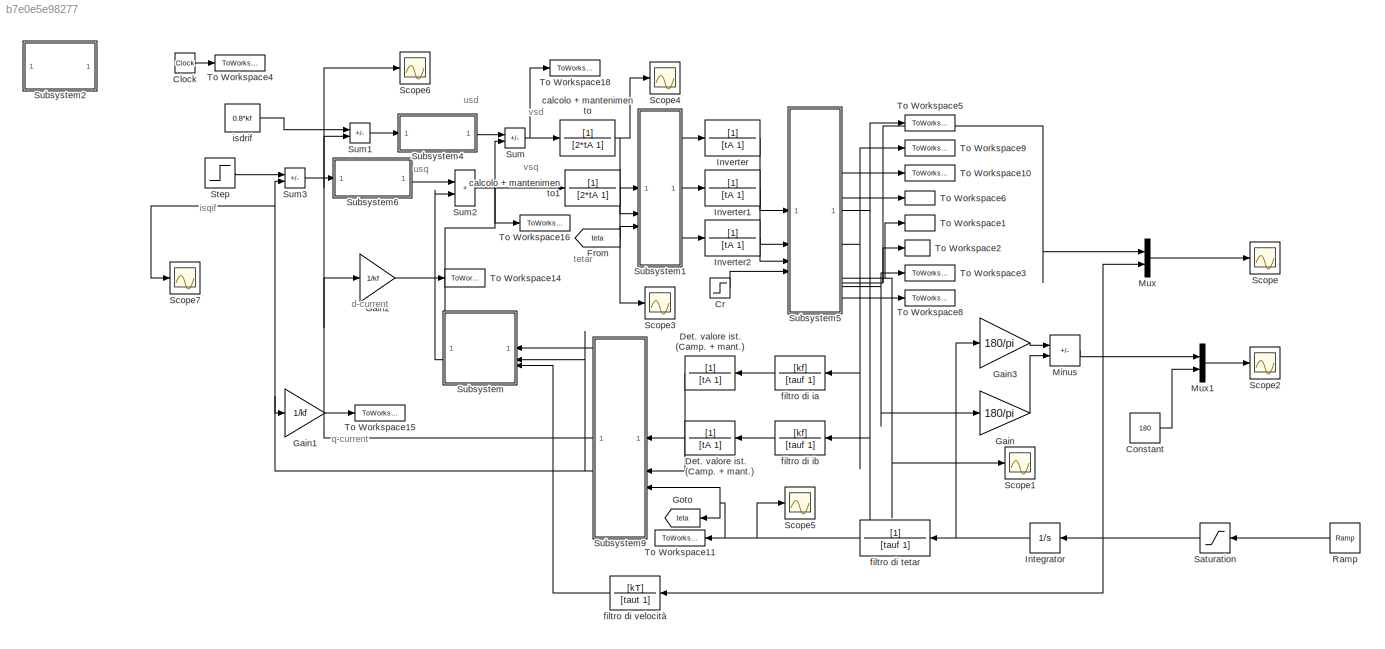
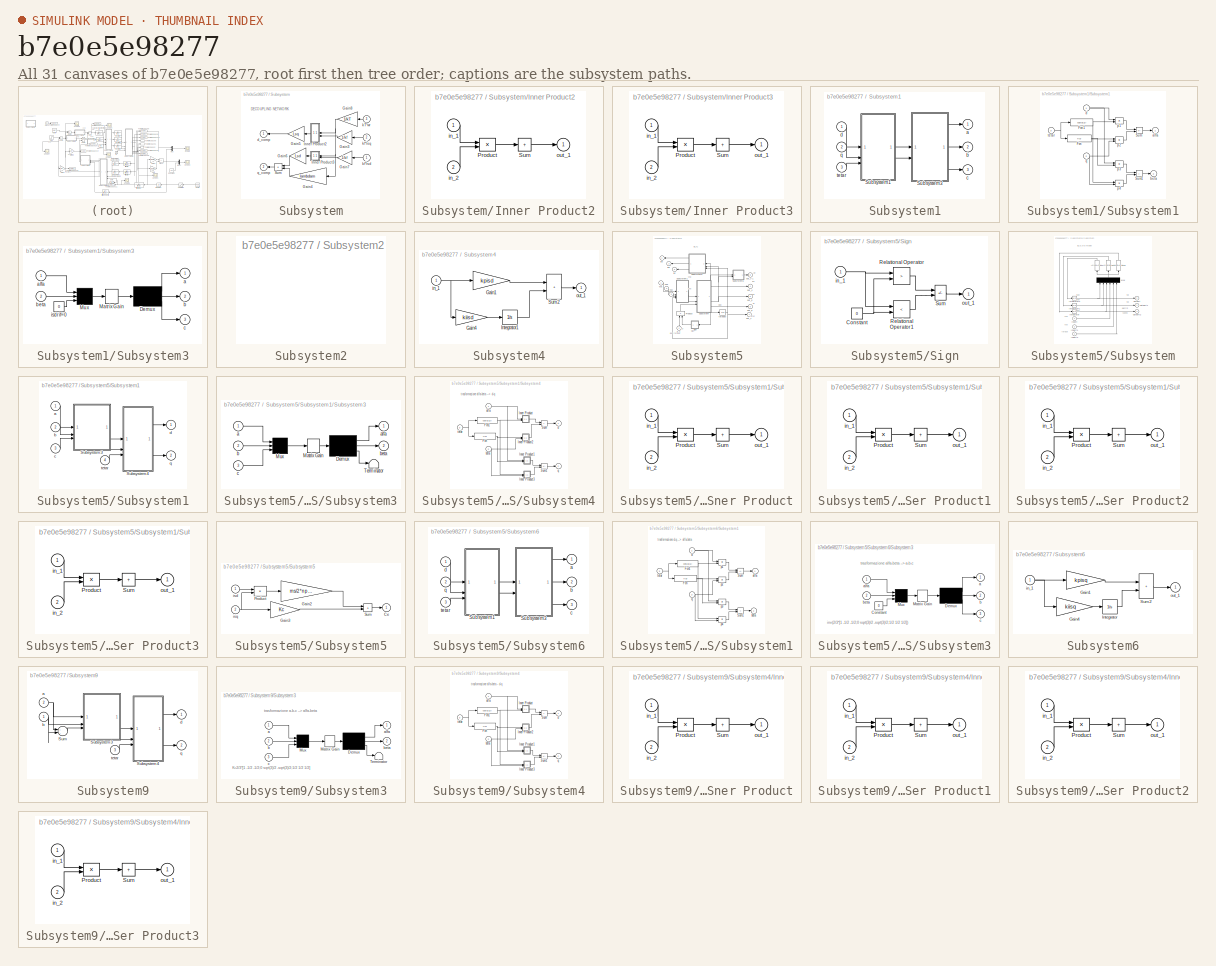
[diagram: thumbnail index - all 31 canvases of the model, root first then tree order]
MODEL slx_b7e0e5e98277
KIND model
CONFIG AbsTol = 1e-4
CONFIG EnableMultiTasking = off
CONFIG FixedStep = fixed_step_size
CONFIG MaxStep = .1*Tc
CONFIG MinStep = auto
CONFIG RelTol = 1e-4
CONFIG SampleTimeConstraint = Unconstrained
CONFIG SolverName = VariableStepAuto
CONFIG StartTime = 0.0
CONFIG StopTime = 1.5
BLOCK [Clock] Clock
  Decimation = 1
BLOCK [Constant] Constant
  Value = 180
BLOCK [Step] Cr
  After = 0
  SampleTime = 0
  Time = 0
BLOCK [TransferFcn] Det. valore ist. (Camp. + mant.)
  Denominator = [tA 1]
BLOCK [TransferFcn] Det. valore ist. (Camp. + mant.) 
  Denominator = [tA 1]
BLOCK [From] From
  CloseFcn = tagdialog Close
  GotoTag = teta
  IconDisplay = Signal name
  TagVisibility = global
BLOCK [Gain] Gain
  Gain = 180/pi
BLOCK [Gain] Gain1
  Gain = 1/kf
  OutDataTypeStr = Inherit: Same as input
  ParamDataTypeStr = Inherit: Same as input
  SaturateOnIntegerOverflow = on
BLOCK [Gain] Gain2
  Gain = 1/kf
  OutDataTypeStr = Inherit: Same as input
  ParamDataTypeStr = Inherit: Same as input
  SaturateOnIntegerOverflow = on
BLOCK [Gain] Gain3
  Gain = 180/pi
BLOCK [Goto] Goto
  GotoTag = teta
  NameLocation = top
  TagVisibility = global
BLOCK [Integrator] Integrator
  NameLocation = top
BLOCK [TransferFcn] Inverter
  Denominator = [tA 1]
  NameLocation = top
BLOCK [TransferFcn] Inverter1
  Denominator = [tA 1]
  NameLocation = top
BLOCK [TransferFcn] Inverter2
  Denominator = [tA 1]
  NameLocation = top
BLOCK [Sum] Minus
  IconShape = rectangular
  Inputs = +-
BLOCK [Mux] Mux
  DisplayOption = bar
  Inputs = 2
BLOCK [Mux] Mux1
  DisplayOption = bar
  Inputs = 2
BLOCK [Reference] Ramp  REF=simulink/Sources/Ramp
  NameLocation = top
  SourceBlock = simulink/Sources/Ramp
  SourceType = Ramp
BLOCK [Saturate] Saturation
  LowerLimit = -50
  NameLocation = top
  UpperLimit = 124
BLOCK [Scope] Scope
  ActiveDisplayYMaximum = 171.98547846661523
  ActiveDisplayYMinimum = -19.109497607401689
  Floating = off
  GraphicalSettings = {"Style":{"BackgroundColor":[0.12549019607843137,0.12549019607843137,0.12549019607843137],"AxesColor":[0.06666666666666667,0.06666666666666667,0.06666666666666667],"LabelsColor":[0.8509803921568627,0.8509803921568627,0.8509803921568627],"PreserveColors":false,"Visible":[true,true],"LineStyle":["-","-"],"LineWidth":[1.5,1.5],"BarWidth":[0.9,0.9],"LineColor":[[1,0.9098039215686274,0.3921568627450980...<+2219ch>
  LayoutDimensionsString = [1 1]
  MultipleDisplayCache = [{"MaxYLimMag":171.98547846661523,"MaxYLimReal":171.98547846661523,"MinYLimMag":0,"MinYLimReal":-19.109497607401689,"PlotAsMagnitudePhase":false,"ShowGrid":true,"ShowLegend":false,"Title":"%<SignalLabel>","YLabel":""}]
  NumInputPorts = 1
  ScopeFrameLocation = window
  WasSavedAsWebScope = on
  WindowPosition = [39.000000,85.000000,928.000000,683.000000,]
BLOCK [Scope] Scope1
  ActiveDisplayYMaximum = 0.92726
  ActiveDisplayYMinimum = -0.99294
  DataLoggingVariableName = ScopeData1
  Floating = off
  GraphicalSettings = {"GraphicalSettings":{"LegacySettings":true,"Style":{"AxesScalingProperties":{"AlignXAxis":"Center","AlignYAxis":"Center","AutoScaleXAxisLimits":false,"AxesScaling":"Manual","AxesScalingNumUpdates":10,"ScaleAxesLimitsAtStop":true,"XAxisDataRange":100,"YAxisDataRange":80},"Style":{"AxesColor":"[0.0705882352941176 0.0705882352941176 0.0705882352941176]","BackgroundColor":"[0.129411764705882 0.129411...<+842ch>
  LayoutDimensionsString = [1 1]
  MultipleDisplayCache = [{"MaxYLimMag":0.99294,"MaxYLimReal":0.92726,"MinYLimMag":0,"MinYLimReal":-0.99294,"PlotAsMagnitudePhase":false,"ShowGrid":true,"ShowLegend":false,"Title":"%<SignalLabel>","YLabel":""}]
  NumInputPorts = 1
  WasSavedAsWebScope = on
  WindowPosition = [350 176 560 420]
BLOCK [Scope] Scope2
  ActiveDisplayYMaximum = 207.45180695810168
  ActiveDisplayYMinimum = -67.066262622915161
  DataLoggingVariableName = ScopeData1
  Floating = off
  GraphicalSettings = {"Style":{"BackgroundColor":[0.12549019607843137,0.12549019607843137,0.12549019607843137],"AxesColor":[0.06666666666666667,0.06666666666666667,0.06666666666666667],"LabelsColor":[0.8509803921568627,0.8509803921568627,0.8509803921568627],"PreserveColors":false,"Visible":[true,true],"LineStyle":["-","-"],"LineWidth":[1.5,1.5],"BarWidth":[0.9,0.9],"LineColor":[[1,0.9098039215686274,0.3921568627450980...<+2141ch>
  LayoutDimensionsString = [1 1]
  MultipleDisplayCache = [{"MaxYLimMag":207.45180695810168,"MaxYLimReal":207.45180695810168,"MinYLimMag":0,"MinYLimReal":-67.066262622915161,"PlotAsMagnitudePhase":false,"ShowGrid":true,"ShowLegend":false,"Title":"%<SignalLabel>","YLabel":""}]
  NumInputPorts = 1
  ScopeFrameLocation = window
  WasSavedAsWebScope = on
  WindowPosition = [34.000000,37.000000,867.000000,547.000000,]
BLOCK [Scope] Scope3
  ActiveDisplayYMaximum = 40.5628
  ActiveDisplayYMinimum = -15.5866
  DataLoggingVariableName = ScopeData2
  Floating = off
  GraphicalSettings = {"GraphicalSettings":{"LegacySettings":true,"Style":{"AxesScalingProperties":{"AlignXAxis":"Center","AlignYAxis":"Center","AutoScaleXAxisLimits":true,"AxesScaling":"Manual","AxesScalingNumUpdates":10,"ScaleAxesLimitsAtStop":true,"XAxisDataRange":100,"YAxisDataRange":80},"Style":{"AxesColor":"[0 0 0]","ChannelNames":[""],"ColorOrder":"[1 0.909803921568627 0.392156862745098;0.149019607843137 0.54901...<+675ch>
  LayoutDimensionsString = [1 1]
  MultipleDisplayCache = [{"MaxYLimMag":40.5628,"MaxYLimReal":40.5628,"MinYLimMag":0,"MinYLimReal":-15.5866,"PlotAsMagnitudePhase":false,"ShowGrid":true,"ShowLegend":false,"Title":"%<SignalLabel>","YLabel":""}]
  NumInputPorts = 1
  WasSavedAsWebScope = on
BLOCK [Scope] Scope4
  ActiveDisplayYMaximum = 18.342605286410514
  ActiveDisplayYMinimum = -14.673438725516837
  DataLoggingVariableName = ScopeData3
  Floating = off
  GraphicalSettings = {"AxesScalingProperties":{"AlignXAxis":"Center","AlignYAxis":"Center","AutoScaleXAxisLimits":true,"AxesScaling":"Manual","AxesScalingNumUpdates":10,"ExpandOnly":true,"ScaleAxesLimitsAtStop":false,"XAxisDataRange":100,"YAxisDataRange":80},"DisplayProperties":{"ColorOrder":["auto","auto","auto","auto","auto","auto","auto","auto","auto","auto","auto","auto","auto","auto","auto","auto","auto","auto","...<+1969ch>
  LayoutDimensionsString = [1 1]
  MultipleDisplayCache = [{"MaxYLimMag":12.349474753433869,"MaxYLimReal":18.342605286410514,"MinYLimMag":0,"MinYLimReal":-14.673438725516837,"PlotAsMagnitudePhase":false,"ShowGrid":true,"ShowLegend":false,"Title":"%<SignalLabel>","YLabel":""}]
  NumInputPorts = 1
  ScopeFrameLocation = window
  WasSavedAsWebScope = on
  WindowPosition = [369.000000,207.000000,560.000000,420.000000,]
BLOCK [Scope] Scope5
  ActiveDisplayYMaximum = 324.403
  ActiveDisplayYMinimum = -36.0448
  DataLoggingVariableName = ScopeData4
  Floating = off
  GraphicalSettings = {"GraphicalSettings":{"LegacySettings":true,"Style":{"AxesScalingProperties":{"AlignXAxis":"Center","AlignYAxis":"Center","AutoScaleXAxisLimits":true,"AxesScaling":"Manual","AxesScalingNumUpdates":10,"ScaleAxesLimitsAtStop":true,"XAxisDataRange":100,"YAxisDataRange":80},"Style":{"AxesColor":"[0 0 0]","ChannelNames":[""],"ColorOrder":"[1 0.909803921568627 0.392156862745098;0.149019607843137 0.54901...<+675ch>
  LayoutDimensionsString = [1 1]
  MultipleDisplayCache = [{"MaxYLimMag":324.403,"MaxYLimReal":324.403,"MinYLimMag":0,"MinYLimReal":-36.0448,"PlotAsMagnitudePhase":false,"ShowGrid":true,"ShowLegend":false,"Title":"%<SignalLabel>","YLabel":""}]
  NumInputPorts = 1
  WasSavedAsWebScope = on
BLOCK [Scope] Scope6
  ActiveDisplayYMaximum = 0.14494
  ActiveDisplayYMinimum = -0.016104
  DataLoggingVariableName = ScopeData5
  Floating = off
  GraphicalSettings = {"GraphicalSettings":{"LegacySettings":true,"Style":{"AxesScalingProperties":{"AlignXAxis":"Center","AlignYAxis":"Center","AutoScaleXAxisLimits":false,"AxesScaling":"Manual","AxesScalingNumUpdates":10,"ScaleAxesLimitsAtStop":true,"XAxisDataRange":100,"YAxisDataRange":80},"Style":{"AxesColor":"[0.0705882352941176 0.0705882352941176 0.0705882352941176]","BackgroundColor":"[0.129411764705882 0.129411...<+822ch>
  LayoutDimensionsString = [1 1]
  MultipleDisplayCache = [{"MaxYLimMag":0.14494,"MaxYLimReal":0.14494,"MinYLimMag":0,"MinYLimReal":-0.016104,"PlotAsMagnitudePhase":false,"ShowGrid":true,"ShowLegend":false,"Title":"%<SignalLabel>","YLabel":""}]
  NumInputPorts = 1
  WasSavedAsWebScope = on
  WindowPosition = [403 174 560 420]
BLOCK [Scope] Scope7
  ActiveDisplayYMaximum = 1
  ActiveDisplayYMinimum = -1
  DataLoggingVariableName = ScopeData6
  Floating = off
  GraphicalSettings = {"Style":{"BackgroundColor":[0.12549019607843137,0.12549019607843137,0.12549019607843137],"AxesColor":[0.06666666666666667,0.06666666666666667,0.06666666666666667],"LabelsColor":[0.8509803921568627,0.8509803921568627,0.8509803921568627],"PreserveColors":false,"Visible":[true],"LineStyle":["-"],"LineWidth":[1.5],"BarWidth":[0.9],"LineColor":[[1,0.9098039215686274,0.39215686274509803]],"LineFaceAlph...<+1942ch>
  LayoutDimensionsString = [1 1]
  MultipleDisplayCache = [{"MaxYLimMag":1,"MaxYLimReal":1,"MinYLimMag":0,"MinYLimReal":-1,"PlotAsMagnitudePhase":false,"ShowGrid":true,"ShowLegend":false,"Title":"%<SignalLabel>","YLabel":""}]
  NumInputPorts = 1
  ScopeFrameLocation = window
  WasSavedAsWebScope = on
  WindowPosition = [403.000000,174.000000,560.000000,420.000000,]
BLOCK [Step] Step
  After = 0
  SampleTime = 0
  Time = 0
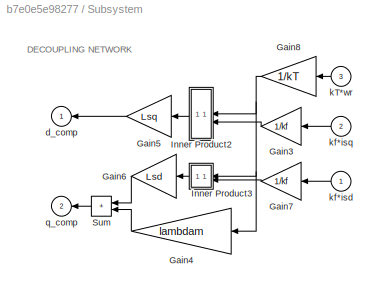
BLOCK [SubSystem] Subsystem
  ShowPortLabels = none
BLOCK [Gain] Subsystem/Gain3
  Gain = 1/kf
  OutDataTypeStr = Inherit: Same as input
  ParamDataTypeStr = Inherit: Same as input
  SaturateOnIntegerOverflow = on
BLOCK [Gain] Subsystem/Gain4
  Gain = lambdam
  OutDataTypeStr = Inherit: Same as input
  ParamDataTypeStr = Inherit: Same as input
  SaturateOnIntegerOverflow = on
BLOCK [Gain] Subsystem/Gain5
  Gain = Lsq
  OutDataTypeStr = Inherit: Same as input
  ParamDataTypeStr = Inherit: Same as input
  SaturateOnIntegerOverflow = on
BLOCK [Gain] Subsystem/Gain6
  Gain = Lsd
  OutDataTypeStr = Inherit: Same as input
  ParamDataTypeStr = Inherit: Same as input
  SaturateOnIntegerOverflow = on
BLOCK [Gain] Subsystem/Gain7
  Gain = 1/kf
  OutDataTypeStr = Inherit: Same as input
  ParamDataTypeStr = Inherit: Same as input
  SaturateOnIntegerOverflow = on
BLOCK [Gain] Subsystem/Gain8
  Gain = 1/kT
  OutDataTypeStr = Inherit: Same as input
  ParamDataTypeStr = Inherit: Same as input
  SaturateOnIntegerOverflow = on
BLOCK [SubSystem] Subsystem/Inner Product2
  ShowPortLabels = none
BLOCK [Product] Subsystem/Inner Product2/Product
  InputSameDT = on
  OutDataTypeStr = Inherit: Same as first input
  SaturateOnIntegerOverflow = on
BLOCK [Sum] Subsystem/Inner Product2/Sum
  IconShape = rectangular
  InputSameDT = on
  Inputs = +
  OutDataTypeStr = Inherit: Same as first input
  SaturateOnIntegerOverflow = on
BLOCK [Inport] Subsystem/Inner Product2/in_1
BLOCK [Inport] Subsystem/Inner Product2/in_2
  Port = 2
BLOCK [Outport] Subsystem/Inner Product2/out_1
BLOCK [SubSystem] Subsystem/Inner Product3
  ShowPortLabels = none
BLOCK [Product] Subsystem/Inner Product3/Product
  InputSameDT = on
  OutDataTypeStr = Inherit: Same as first input
  SaturateOnIntegerOverflow = on
BLOCK [Sum] Subsystem/Inner Product3/Sum
  IconShape = rectangular
  InputSameDT = on
  Inputs = +
  OutDataTypeStr = Inherit: Same as first input
  SaturateOnIntegerOverflow = on
BLOCK [Inport] Subsystem/Inner Product3/in_1
BLOCK [Inport] Subsystem/Inner Product3/in_2
  Port = 2
BLOCK [Outport] Subsystem/Inner Product3/out_1
BLOCK [Sum] Subsystem/Sum
  IconShape = rectangular
  InputSameDT = on
  OutDataTypeStr = Inherit: Same as first input
  SaturateOnIntegerOverflow = on
BLOCK [Outport] Subsystem/d_comp
BLOCK [Inport] Subsystem/kT*wr
  Port = 3
BLOCK [Inport] Subsystem/kf*isd
BLOCK [Inport] Subsystem/kf*isq
  Port = 2
BLOCK [Outport] Subsystem/q_comp
  Port = 2
BLOCK [SubSystem] Subsystem1
  ShowPortLabels = none
BLOCK [SubSystem] Subsystem1/Subsystem1
  ShowPortLabels = none
BLOCK [Fcn] Subsystem1/Subsystem1/Fcn
BLOCK [Fcn] Subsystem1/Subsystem1/Fcn1
  Expr = cos(u[1])
BLOCK [Sum] Subsystem1/Subsystem1/Sum
  IconShape = rectangular
  InputSameDT = on
  Inputs = +-
  OutDataTypeStr = Inherit: Same as first input
  SaturateOnIntegerOverflow = on
BLOCK [Sum] Subsystem1/Subsystem1/Sum1
  IconShape = rectangular
  InputSameDT = on
  OutDataTypeStr = Inherit: Same as first input
  SaturateOnIntegerOverflow = on
BLOCK [Outport] Subsystem1/Subsystem1/alfa
BLOCK [Outport] Subsystem1/Subsystem1/beta
  Port = 2
BLOCK [Inport] Subsystem1/Subsystem1/d
BLOCK [Product] Subsystem1/Subsystem1/p1
  InputSameDT = on
  OutDataTypeStr = Inherit: Same as first input
  SaturateOnIntegerOverflow = on
BLOCK [Product] Subsystem1/Subsystem1/p2
  InputSameDT = on
  OutDataTypeStr = Inherit: Same as first input
  SaturateOnIntegerOverflow = on
BLOCK [Product] Subsystem1/Subsystem1/p3
  InputSameDT = on
  OutDataTypeStr = Inherit: Same as first input
  SaturateOnIntegerOverflow = on
BLOCK [Product] Subsystem1/Subsystem1/p4
  InputSameDT = on
  OutDataTypeStr = Inherit: Same as first input
  SaturateOnIntegerOverflow = on
BLOCK [Inport] Subsystem1/Subsystem1/q
  Port = 2
BLOCK [Inport] Subsystem1/Subsystem1/tetar 
  Port = 3
BLOCK [SubSystem] Subsystem1/Subsystem3
  ShowPortLabels = none
BLOCK [Demux] Subsystem1/Subsystem3/Demux
  DisplayOption = none
  Outputs = 3
BLOCK [StateSpace] Subsystem1/Subsystem3/Matrix Gain
  A = []
  B = []
  C = []
  D = K
  InitialCondition = 0
BLOCK [Mux] Subsystem1/Subsystem3/Mux
  Inputs = 3
BLOCK [Outport] Subsystem1/Subsystem3/a
BLOCK [Inport] Subsystem1/Subsystem3/alfa
BLOCK [Outport] Subsystem1/Subsystem3/b
  Port = 2
BLOCK [Inport] Subsystem1/Subsystem3/beta
  Port = 2
BLOCK [Outport] Subsystem1/Subsystem3/c 
  Port = 3
BLOCK [Constant] Subsystem1/Subsystem3/isdrif=0
  Value = 0
BLOCK [Outport] Subsystem1/a
BLOCK [Outport] Subsystem1/b
  Port = 2
BLOCK [Outport] Subsystem1/c
  Port = 3
BLOCK [Inport] Subsystem1/d
BLOCK [Inport] Subsystem1/q
  Port = 2
BLOCK [Inport] Subsystem1/tetar
  Port = 3
BLOCK [SubSystem] Subsystem2
  OpenFcn = BLAC_1d
  ShowPortLabels = none
BLOCK [SubSystem] Subsystem4
  ShowPortLabels = none
BLOCK [Gain] Subsystem4/Gain1
  Gain = kpisd
  OutDataTypeStr = Inherit: Same as input
  ParamDataTypeStr = Inherit: Same as input
  SaturateOnIntegerOverflow = on
BLOCK [Gain] Subsystem4/Gain4
  Gain = kiisd
  OutDataTypeStr = Inherit: Same as input
  ParamDataTypeStr = Inherit: Same as input
  SaturateOnIntegerOverflow = on
BLOCK [Integrator] Subsystem4/Integrator1
BLOCK [Sum] Subsystem4/Sum2
  IconShape = rectangular
  InputSameDT = on
  OutDataTypeStr = Inherit: Same as first input
  SaturateOnIntegerOverflow = on
BLOCK [Inport] Subsystem4/in_1
BLOCK [Outport] Subsystem4/out_1
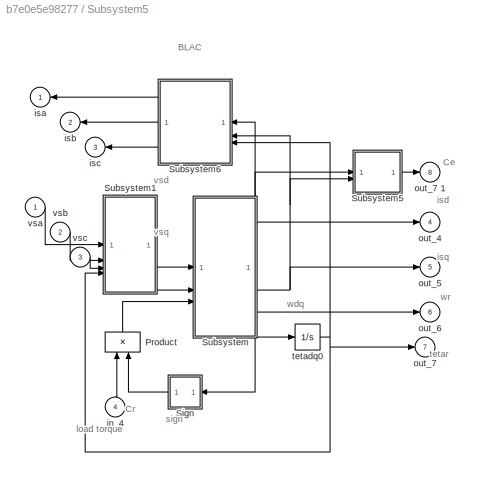
BLOCK [SubSystem] Subsystem5
  ShowPortLabels = none
BLOCK [Product] Subsystem5/Product
  InputSameDT = on
  NameLocation = right
  OutDataTypeStr = Inherit: Same as first input
  SaturateOnIntegerOverflow = on
BLOCK [SubSystem] Subsystem5/Sign
  ShowPortLabels = none
BLOCK [Constant] Subsystem5/Sign/Constant
  Value = 0
BLOCK [RelationalOperator] Subsystem5/Sign/Relational Operator
  Operator = >
BLOCK [RelationalOperator] Subsystem5/Sign/Relational Operator1
  Operator = <
BLOCK [Sum] Subsystem5/Sign/Sum
  IconShape = rectangular
  InputSameDT = on
  Inputs = +-
  OutDataTypeStr = Inherit: Same as first input
  SaturateOnIntegerOverflow = on
BLOCK [Inport] Subsystem5/Sign/in_1
BLOCK [Outport] Subsystem5/Sign/out_1
BLOCK [SubSystem] Subsystem5/Subsystem
  ShowPortLabels = none
BLOCK [Fcn] Subsystem5/Subsystem/Fcn
  Expr = A1*u[1]+A2*u[2]*u[3]+A3*u[4]
  NameLocation = right
BLOCK [Fcn] Subsystem5/Subsystem/Fcn1
  Expr = A4*u[1]*u[3]+A5*u[2]+A6*u[3]+A7*u[5]
  NameLocation = right
BLOCK [Fcn] Subsystem5/Subsystem/Fcn2
  Expr = A8*u[2]+A9*u[1]*u[2]+A10*u[3]+A11*u[6]
  NameLocation = right
BLOCK [Inport] Subsystem5/Subsystem/Inport
BLOCK [Inport] Subsystem5/Subsystem/Inport1
  Port = 2
BLOCK [Inport] Subsystem5/Subsystem/Inport2
  Port = 3
BLOCK [Integrator] Subsystem5/Subsystem/Integrator
  InitialCondition = wdq0
BLOCK [Integrator] Subsystem5/Subsystem/Integrator1
  InitialCondition = isq0
BLOCK [Integrator] Subsystem5/Subsystem/Integrator2
  InitialCondition = isd0
BLOCK [Mux] Subsystem5/Subsystem/Mux
  Inputs = 6
  NameLocation = right
BLOCK [Outport] Subsystem5/Subsystem/Outport
BLOCK [Outport] Subsystem5/Subsystem/Outport1
  Port = 2
BLOCK [Outport] Subsystem5/Subsystem/Outport2
  Port = 3
BLOCK [SubSystem] Subsystem5/Subsystem1
  ShowPortLabels = none
BLOCK [SubSystem] Subsystem5/Subsystem1/Subsystem3
  ShowPortLabels = none
BLOCK [Demux] Subsystem5/Subsystem1/Subsystem3/Demux
  DisplayOption = none
  Outputs = 3
BLOCK [StateSpace] Subsystem5/Subsystem1/Subsystem3/Matrix Gain
  A = []
  B = []
  C = []
  D = K
  InitialCondition = 0
BLOCK [Mux] Subsystem5/Subsystem1/Subsystem3/Mux
  Inputs = 3
BLOCK [Terminator] Subsystem5/Subsystem1/Subsystem3/Terminator
BLOCK [Inport] Subsystem5/Subsystem1/Subsystem3/a
BLOCK [Outport] Subsystem5/Subsystem1/Subsystem3/alfa
BLOCK [Inport] Subsystem5/Subsystem1/Subsystem3/b
  Port = 2
BLOCK [Outport] Subsystem5/Subsystem1/Subsystem3/beta
  Port = 2
BLOCK [Inport] Subsystem5/Subsystem1/Subsystem3/c
  Port = 3
BLOCK [SubSystem] Subsystem5/Subsystem1/Subsystem4
  ShowPortLabels = none
BLOCK [Fcn] Subsystem5/Subsystem1/Subsystem4/Fcn
BLOCK [Fcn] Subsystem5/Subsystem1/Subsystem4/Fcn1
  Expr = cos(u[1])
BLOCK [SubSystem] Subsystem5/Subsystem1/Subsystem4/Inner Product
  ShowPortLabels = none
BLOCK [Product] Subsystem5/Subsystem1/Subsystem4/Inner Product/Product
  InputSameDT = on
  OutDataTypeStr = Inherit: Same as first input
  SaturateOnIntegerOverflow = on
BLOCK [Sum] Subsystem5/Subsystem1/Subsystem4/Inner Product/Sum
  IconShape = rectangular
  InputSameDT = on
  Inputs = +
  OutDataTypeStr = Inherit: Same as first input
  SaturateOnIntegerOverflow = on
BLOCK [Inport] Subsystem5/Subsystem1/Subsystem4/Inner Product/in_1
BLOCK [Inport] Subsystem5/Subsystem1/Subsystem4/Inner Product/in_2
  Port = 2
BLOCK [Outport] Subsystem5/Subsystem1/Subsystem4/Inner Product/out_1
BLOCK [SubSystem] Subsystem5/Subsystem1/Subsystem4/Inner Product1
  ShowPortLabels = none
BLOCK [Product] Subsystem5/Subsystem1/Subsystem4/Inner Product1/Product
  InputSameDT = on
  OutDataTypeStr = Inherit: Same as first input
  SaturateOnIntegerOverflow = on
BLOCK [Sum] Subsystem5/Subsystem1/Subsystem4/Inner Product1/Sum
  IconShape = rectangular
  InputSameDT = on
  Inputs = +
  OutDataTypeStr = Inherit: Same as first input
  SaturateOnIntegerOverflow = on
BLOCK [Inport] Subsystem5/Subsystem1/Subsystem4/Inner Product1/in_1
BLOCK [Inport] Subsystem5/Subsystem1/Subsystem4/Inner Product1/in_2
  Port = 2
BLOCK [Outport] Subsystem5/Subsystem1/Subsystem4/Inner Product1/out_1
BLOCK [SubSystem] Subsystem5/Subsystem1/Subsystem4/Inner Product2
  ShowPortLabels = none
BLOCK [Product] Subsystem5/Subsystem1/Subsystem4/Inner Product2/Product
  InputSameDT = on
  OutDataTypeStr = Inherit: Same as first input
  SaturateOnIntegerOverflow = on
BLOCK [Sum] Subsystem5/Subsystem1/Subsystem4/Inner Product2/Sum
  IconShape = rectangular
  InputSameDT = on
  Inputs = +
  OutDataTypeStr = Inherit: Same as first input
  SaturateOnIntegerOverflow = on
BLOCK [Inport] Subsystem5/Subsystem1/Subsystem4/Inner Product2/in_1
BLOCK [Inport] Subsystem5/Subsystem1/Subsystem4/Inner Product2/in_2
  Port = 2
BLOCK [Outport] Subsystem5/Subsystem1/Subsystem4/Inner Product2/out_1
BLOCK [SubSystem] Subsystem5/Subsystem1/Subsystem4/Inner Product3
  ShowPortLabels = none
BLOCK [Product] Subsystem5/Subsystem1/Subsystem4/Inner Product3/Product
  InputSameDT = on
  OutDataTypeStr = Inherit: Same as first input
  SaturateOnIntegerOverflow = on
BLOCK [Sum] Subsystem5/Subsystem1/Subsystem4/Inner Product3/Sum
  IconShape = rectangular
  InputSameDT = on
  Inputs = +
  OutDataTypeStr = Inherit: Same as first input
  SaturateOnIntegerOverflow = on
BLOCK [Inport] Subsystem5/Subsystem1/Subsystem4/Inner Product3/in_1
BLOCK [Inport] Subsystem5/Subsystem1/Subsystem4/Inner Product3/in_2
  Port = 2
BLOCK [Outport] Subsystem5/Subsystem1/Subsystem4/Inner Product3/out_1
BLOCK [Sum] Subsystem5/Subsystem1/Subsystem4/Sum
  IconShape = rectangular
  InputSameDT = on
  OutDataTypeStr = Inherit: Same as first input
  SaturateOnIntegerOverflow = on
BLOCK [Sum] Subsystem5/Subsystem1/Subsystem4/Sum1
  IconShape = rectangular
  InputSameDT = on
  Inputs = -+
  OutDataTypeStr = Inherit: Same as first input
  SaturateOnIntegerOverflow = on
BLOCK [Inport] Subsystem5/Subsystem1/Subsystem4/alfa
BLOCK [Inport] Subsystem5/Subsystem1/Subsystem4/beta
  Port = 2
BLOCK [Outport] Subsystem5/Subsystem1/Subsystem4/d
BLOCK [Outport] Subsystem5/Subsystem1/Subsystem4/q
  Port = 2
BLOCK [Inport] Subsystem5/Subsystem1/Subsystem4/tetar 
  Port = 3
BLOCK [Inport] Subsystem5/Subsystem1/a
BLOCK [Inport] Subsystem5/Subsystem1/b
  Port = 2
BLOCK [Inport] Subsystem5/Subsystem1/c
  Port = 3
BLOCK [Outport] Subsystem5/Subsystem1/d
BLOCK [Outport] Subsystem5/Subsystem1/q
  Port = 2
BLOCK [Inport] Subsystem5/Subsystem1/tetar
  Port = 4
BLOCK [SubSystem] Subsystem5/Subsystem5
  ShowPortLabels = none
BLOCK [Outport] Subsystem5/Subsystem5/Ce
BLOCK [Gain] Subsystem5/Subsystem5/Gain2
  Gain = ms/2*np*(Lsd-Lsq)
  OutDataTypeStr = Inherit: Same as input
  ParamDataTypeStr = Inherit: Same as input
  SaturateOnIntegerOverflow = on
BLOCK [Gain] Subsystem5/Subsystem5/Gain3
  Gain = Kc
  OutDataTypeStr = Inherit: Same as input
  ParamDataTypeStr = Inherit: Same as input
  SaturateOnIntegerOverflow = on
BLOCK [Product] Subsystem5/Subsystem5/Product
  InputSameDT = on
  OutDataTypeStr = Inherit: Same as first input
  SaturateOnIntegerOverflow = on
BLOCK [Sum] Subsystem5/Subsystem5/Sum
  IconShape = rectangular
  InputSameDT = on
  OutDataTypeStr = Inherit: Same as first input
  SaturateOnIntegerOverflow = on
BLOCK [Inport] Subsystem5/Subsystem5/isd
BLOCK [Inport] Subsystem5/Subsystem5/isq
  Port = 2
BLOCK [SubSystem] Subsystem5/Subsystem6
  ShowPortLabels = none
BLOCK [SubSystem] Subsystem5/Subsystem6/Subsystem1
  ShowPortLabels = none
BLOCK [Fcn] Subsystem5/Subsystem6/Subsystem1/Fcn
BLOCK [Fcn] Subsystem5/Subsystem6/Subsystem1/Fcn1
  Expr = cos(u[1])
BLOCK [Sum] Subsystem5/Subsystem6/Subsystem1/Sum
  IconShape = rectangular
  InputSameDT = on
  Inputs = +-
  OutDataTypeStr = Inherit: Same as first input
  SaturateOnIntegerOverflow = on
BLOCK [Sum] Subsystem5/Subsystem6/Subsystem1/Sum1
  IconShape = rectangular
  InputSameDT = on
  OutDataTypeStr = Inherit: Same as first input
  SaturateOnIntegerOverflow = on
BLOCK [Outport] Subsystem5/Subsystem6/Subsystem1/alfa
BLOCK [Outport] Subsystem5/Subsystem6/Subsystem1/beta
  Port = 2
BLOCK [Inport] Subsystem5/Subsystem6/Subsystem1/d
BLOCK [Product] Subsystem5/Subsystem6/Subsystem1/p1
  InputSameDT = on
  OutDataTypeStr = Inherit: Same as first input
  SaturateOnIntegerOverflow = on
BLOCK [Product] Subsystem5/Subsystem6/Subsystem1/p2
  InputSameDT = on
  OutDataTypeStr = Inherit: Same as first input
  SaturateOnIntegerOverflow = on
BLOCK [Product] Subsystem5/Subsystem6/Subsystem1/p3
  InputSameDT = on
  OutDataTypeStr = Inherit: Same as first input
  SaturateOnIntegerOverflow = on
BLOCK [Product] Subsystem5/Subsystem6/Subsystem1/p4
  InputSameDT = on
  OutDataTypeStr = Inherit: Same as first input
  SaturateOnIntegerOverflow = on
BLOCK [Inport] Subsystem5/Subsystem6/Subsystem1/q
  Port = 2
BLOCK [Inport] Subsystem5/Subsystem6/Subsystem1/tetar 
  Port = 3
BLOCK [SubSystem] Subsystem5/Subsystem6/Subsystem3
  ShowPortLabels = none
BLOCK [Constant] Subsystem5/Subsystem6/Subsystem3/Constant
  Value = 0
BLOCK [Demux] Subsystem5/Subsystem6/Subsystem3/Demux
  DisplayOption = none
  Outputs = 3
BLOCK [StateSpace] Subsystem5/Subsystem6/Subsystem3/Matrix Gain
  A = []
  B = []
  C = []
  D = K
  InitialCondition = 0
BLOCK [Mux] Subsystem5/Subsystem6/Subsystem3/Mux
  Inputs = 3
BLOCK [Outport] Subsystem5/Subsystem6/Subsystem3/a
BLOCK [Inport] Subsystem5/Subsystem6/Subsystem3/alfa
BLOCK [Outport] Subsystem5/Subsystem6/Subsystem3/b
  Port = 2
BLOCK [Inport] Subsystem5/Subsystem6/Subsystem3/beta
  Port = 2
BLOCK [Outport] Subsystem5/Subsystem6/Subsystem3/c 
  Port = 3
BLOCK [Outport] Subsystem5/Subsystem6/a
BLOCK [Outport] Subsystem5/Subsystem6/b
  Port = 2
BLOCK [Outport] Subsystem5/Subsystem6/c
  Port = 3
BLOCK [Inport] Subsystem5/Subsystem6/d
BLOCK [Inport] Subsystem5/Subsystem6/q
  Port = 2
BLOCK [Inport] Subsystem5/Subsystem6/tetar
  Port = 3
BLOCK [Inport] Subsystem5/in_4
  NameLocation = right
  Port = 4
BLOCK [Outport] Subsystem5/isa
BLOCK [Outport] Subsystem5/isb
  Port = 2
BLOCK [Outport] Subsystem5/isc
  Port = 3
BLOCK [Outport] Subsystem5/out_4
  Port = 4
BLOCK [Outport] Subsystem5/out_5
  Port = 5
BLOCK [Outport] Subsystem5/out_6
  Port = 6
BLOCK [Outport] Subsystem5/out_7 
  Port = 7
BLOCK [Outport] Subsystem5/out_7 1
  Port = 8
BLOCK [Integrator] Subsystem5/tetadq0
  InitialCondition = tetadq0
BLOCK [Inport] Subsystem5/vsa
BLOCK [Inport] Subsystem5/vsb
  Port = 2
BLOCK [Inport] Subsystem5/vsc
  Port = 3
BLOCK [SubSystem] Subsystem6
  ShowPortLabels = none
BLOCK [Gain] Subsystem6/Gain1
  Gain = kpisq
  OutDataTypeStr = Inherit: Same as input
  ParamDataTypeStr = Inherit: Same as input
  SaturateOnIntegerOverflow = on
BLOCK [Gain] Subsystem6/Gain4
  Gain = kiisq
  OutDataTypeStr = Inherit: Same as input
  ParamDataTypeStr = Inherit: Same as input
  SaturateOnIntegerOverflow = on
BLOCK [Integrator] Subsystem6/Integrator
BLOCK [Sum] Subsystem6/Sum2
  IconShape = rectangular
  InputSameDT = on
  OutDataTypeStr = Inherit: Same as first input
  SaturateOnIntegerOverflow = on
BLOCK [Inport] Subsystem6/in_1
BLOCK [Outport] Subsystem6/out_1
BLOCK [SubSystem] Subsystem9
  ShowPortLabels = none
BLOCK [SubSystem] Subsystem9/Subsystem3
  ShowPortLabels = none
BLOCK [Demux] Subsystem9/Subsystem3/Demux
  DisplayOption = none
  Outputs = 3
BLOCK [StateSpace] Subsystem9/Subsystem3/Matrix Gain
  A = []
  B = []
  C = []
  D = K
  InitialCondition = 0
BLOCK [Mux] Subsystem9/Subsystem3/Mux
  Inputs = 3
BLOCK [Terminator] Subsystem9/Subsystem3/Terminator
BLOCK [Inport] Subsystem9/Subsystem3/a
BLOCK [Outport] Subsystem9/Subsystem3/alfa
BLOCK [Inport] Subsystem9/Subsystem3/b
  Port = 2
BLOCK [Outport] Subsystem9/Subsystem3/beta
  Port = 2
BLOCK [Inport] Subsystem9/Subsystem3/c
  Port = 3
BLOCK [SubSystem] Subsystem9/Subsystem4
  ShowPortLabels = none
BLOCK [Fcn] Subsystem9/Subsystem4/Fcn
BLOCK [Fcn] Subsystem9/Subsystem4/Fcn1
  Expr = cos(u[1])
BLOCK [SubSystem] Subsystem9/Subsystem4/Inner Product
  ShowPortLabels = none
BLOCK [Product] Subsystem9/Subsystem4/Inner Product/Product
  InputSameDT = on
  OutDataTypeStr = Inherit: Same as first input
  SaturateOnIntegerOverflow = on
BLOCK [Sum] Subsystem9/Subsystem4/Inner Product/Sum
  IconShape = rectangular
  InputSameDT = on
  Inputs = +
  OutDataTypeStr = Inherit: Same as first input
  SaturateOnIntegerOverflow = on
BLOCK [Inport] Subsystem9/Subsystem4/Inner Product/in_1
BLOCK [Inport] Subsystem9/Subsystem4/Inner Product/in_2
  Port = 2
BLOCK [Outport] Subsystem9/Subsystem4/Inner Product/out_1
BLOCK [SubSystem] Subsystem9/Subsystem4/Inner Product1
  ShowPortLabels = none
BLOCK [Product] Subsystem9/Subsystem4/Inner Product1/Product
  InputSameDT = on
  OutDataTypeStr = Inherit: Same as first input
  SaturateOnIntegerOverflow = on
BLOCK [Sum] Subsystem9/Subsystem4/Inner Product1/Sum
  IconShape = rectangular
  InputSameDT = on
  Inputs = +
  OutDataTypeStr = Inherit: Same as first input
  SaturateOnIntegerOverflow = on
BLOCK [Inport] Subsystem9/Subsystem4/Inner Product1/in_1
BLOCK [Inport] Subsystem9/Subsystem4/Inner Product1/in_2
  Port = 2
BLOCK [Outport] Subsystem9/Subsystem4/Inner Product1/out_1
BLOCK [SubSystem] Subsystem9/Subsystem4/Inner Product2
  ShowPortLabels = none
BLOCK [Product] Subsystem9/Subsystem4/Inner Product2/Product
  InputSameDT = on
  OutDataTypeStr = Inherit: Same as first input
  SaturateOnIntegerOverflow = on
BLOCK [Sum] Subsystem9/Subsystem4/Inner Product2/Sum
  IconShape = rectangular
  InputSameDT = on
  Inputs = +
  OutDataTypeStr = Inherit: Same as first input
  SaturateOnIntegerOverflow = on
BLOCK [Inport] Subsystem9/Subsystem4/Inner Product2/in_1
BLOCK [Inport] Subsystem9/Subsystem4/Inner Product2/in_2
  Port = 2
BLOCK [Outport] Subsystem9/Subsystem4/Inner Product2/out_1
BLOCK [SubSystem] Subsystem9/Subsystem4/Inner Product3
  ShowPortLabels = none
BLOCK [Product] Subsystem9/Subsystem4/Inner Product3/Product
  InputSameDT = on
  OutDataTypeStr = Inherit: Same as first input
  SaturateOnIntegerOverflow = on
BLOCK [Sum] Subsystem9/Subsystem4/Inner Product3/Sum
  IconShape = rectangular
  InputSameDT = on
  Inputs = +
  OutDataTypeStr = Inherit: Same as first input
  SaturateOnIntegerOverflow = on
BLOCK [Inport] Subsystem9/Subsystem4/Inner Product3/in_1
BLOCK [Inport] Subsystem9/Subsystem4/Inner Product3/in_2
  Port = 2
BLOCK [Outport] Subsystem9/Subsystem4/Inner Product3/out_1
BLOCK [Sum] Subsystem9/Subsystem4/Sum
  IconShape = rectangular
  InputSameDT = on
  OutDataTypeStr = Inherit: Same as first input
  SaturateOnIntegerOverflow = on
BLOCK [Sum] Subsystem9/Subsystem4/Sum1
  IconShape = rectangular
  InputSameDT = on
  Inputs = -+
  OutDataTypeStr = Inherit: Same as first input
  SaturateOnIntegerOverflow = on
BLOCK [Inport] Subsystem9/Subsystem4/alfa
BLOCK [Inport] Subsystem9/Subsystem4/beta
  Port = 2
BLOCK [Outport] Subsystem9/Subsystem4/d
BLOCK [Outport] Subsystem9/Subsystem4/q
  Port = 2
BLOCK [Inport] Subsystem9/Subsystem4/tetar 
  Port = 3
BLOCK [Sum] Subsystem9/Sum
  InputSameDT = on
  Inputs = --
  OutDataTypeStr = Inherit: Same as first input
  SaturateOnIntegerOverflow = on
BLOCK [Inport] Subsystem9/a
  Port = 2
BLOCK [Inport] Subsystem9/b
BLOCK [Outport] Subsystem9/d
BLOCK [Outport] Subsystem9/q
  Port = 2
BLOCK [Inport] Subsystem9/tetar
  Port = 3
BLOCK [Sum] Sum
  IconShape = rectangular
  InputSameDT = on
  Inputs = +-
  OutDataTypeStr = Inherit: Same as first input
  SaturateOnIntegerOverflow = on
BLOCK [Sum] Sum1
  IconShape = rectangular
  InputSameDT = on
  Inputs = +-
  OutDataTypeStr = Inherit: Same as first input
  SaturateOnIntegerOverflow = on
BLOCK [Sum] Sum2
  IconShape = rectangular
  InputSameDT = on
  OutDataTypeStr = Inherit: Same as first input
  SaturateOnIntegerOverflow = on
BLOCK [Sum] Sum3
  IconShape = rectangular
  InputSameDT = on
  Inputs = +-
  OutDataTypeStr = Inherit: Same as first input
  SaturateOnIntegerOverflow = on
BLOCK [ToWorkspace] To Workspace1
  MaxDataPoints = 1e6
  OpenFcn = figure(5);                                     \nplot(ts,isq,'k',ts,isqr,'--k','linewidth',2);  \nxlabel('time [s]');                            \nylabel('isq [A]');title('BLAC motor q-current')
  VariableName = isq
BLOCK [ToWorkspace] To Workspace10
  MaxDataPoints = 1e6
  OpenFcn = figure(4);plot(ts,isc);xlabel('time [s]');ylabel('isc [A]');title('BLAC motor phase current')
  VariableName = isc
BLOCK [ToWorkspace] To Workspace11
  MaxDataPoints = inf
  NameLocation = top
  VariableName = tetam
BLOCK [ToWorkspace] To Workspace14
  MaxDataPoints = inf
  VariableName = isdm
BLOCK [ToWorkspace] To Workspace15
  MaxDataPoints = inf
  VariableName = isqm
BLOCK [ToWorkspace] To Workspace16
  MaxDataPoints = inf
  VariableName = vsq
BLOCK [ToWorkspace] To Workspace18
  MaxDataPoints = inf
  VariableName = vsd
BLOCK [ToWorkspace] To Workspace2
  MaxDataPoints = 1e6
  OpenFcn = figure(1);                                  \nplot(ts,wref,'--k',ts,wr,'k','linewidth',2);\nxlabel('time [s]');                         \nylabel('speed [rad/s]');                    \ntitle('BLAC motor speed response')
  VariableName = wr
BLOCK [ToWorkspace] To Workspace3
  MaxDataPoints = inf
  VariableName = tetar
BLOCK [ToWorkspace] To Workspace4
  MaxDataPoints = inf
  VariableName = ts
BLOCK [ToWorkspace] To Workspace5
  MaxDataPoints = 1e6
  OpenFcn = figure(2);plot(ts,isa);xlabel('time [s]');ylabel('isa [A]');title('BLAC motor phase current')
  VariableName = isa
BLOCK [ToWorkspace] To Workspace6
  MaxDataPoints = 1e6
  OpenFcn = figure(5);plot(ts,isd,'linewidth',2);xlabel('time [s]');ylabel('isd [A]');title('BLAC motor d-current')\naxis([0 0.5 -5 20])
  VariableName = isd
BLOCK [ToWorkspace] To Workspace8
  MaxDataPoints = 1e6
  OpenFcn = figure(7);plot(ts,torque,'k','linewidth',2);\nxlabel('time [s]');                         \nylabel('Electromagnetic torque [Nm]');      \ntitle('BLAC motor electromagnetic torque')
  VariableName = torque
BLOCK [ToWorkspace] To Workspace9
  MaxDataPoints = 1e6
  OpenFcn = figure(3);plot(ts,isb);xlabel('time [s]');ylabel('isb [A]');title('BLAC motor phase current')
  VariableName = isb
BLOCK [TransferFcn] calcolo + mantenimento
  Denominator = [2*tA 1]
  NameLocation = top
BLOCK [TransferFcn] calcolo + mantenimento1
  Denominator = [2*tA 1]
  NameLocation = top
BLOCK [TransferFcn] filtro di ia
  Denominator = [tauf 1]
  Numerator = [kf]
BLOCK [TransferFcn] filtro di ib
  Denominator = [tauf 1]
  Numerator = [kf]
BLOCK [TransferFcn] filtro di tetar
  Denominator = [tauf 1]
BLOCK [TransferFcn] filtro di velocità
  Denominator = [taut 1]
  Numerator = [kT]
BLOCK [Constant] isdrif
  Value = 0.8*kf
ANNOTATION (root): d-current
ANNOTATION (root): isqif
ANNOTATION (root): q-current
ANNOTATION (root): tetar
ANNOTATION (root): usd
ANNOTATION (root): usq
ANNOTATION (root): vsd
ANNOTATION (root): vsq
ANNOTATION Subsystem: DECOUPLING NETWORK
ANNOTATION Subsystem5: BLAC
ANNOTATION Subsystem5: Ce
ANNOTATION Subsystem5: Cr
ANNOTATION Subsystem5: isd
ANNOTATION Subsystem5: isq
ANNOTATION Subsystem5: load torque
ANNOTATION Subsystem5: sign
ANNOTATION Subsystem5: tetar
ANNOTATION Subsystem5: vsd
ANNOTATION Subsystem5: vsq
ANNOTATION Subsystem5: wdq
ANNOTATION Subsystem5: wr
ANNOTATION Subsystem5/Subsystem: BLAC d-q model
ANNOTATION Subsystem5/Subsystem: electric speed
ANNOTATION Subsystem5/Subsystem: isd
ANNOTATION Subsystem5/Subsystem: isd0
ANNOTATION Subsystem5/Subsystem: isq
ANNOTATION Subsystem5/Subsystem: isq0
ANNOTATION Subsystem5/Subsystem: torque
ANNOTATION Subsystem5/Subsystem: vsd
ANNOTATION Subsystem5/Subsystem: vsq
ANNOTATION Subsystem5/Subsystem: wdq0
ANNOTATION Subsystem5/Subsystem1/Subsystem4: trasformazione alfa-beta --> d-q
ANNOTATION Subsystem5/Subsystem6/Subsystem1: trasformazione d-q --> alfa-beta
ANNOTATION Subsystem5/Subsystem6/Subsystem3: inv(2/3*[1 -1/2 -1/2;0 sqrt(3)/2 -sqrt(3)/2;1/2 1/2 1/2])
ANNOTATION Subsystem5/Subsystem6/Subsystem3: trasformazione alfa-beta --> a-b-c
ANNOTATION Subsystem9/Subsystem3: K=2/3*[1 -1/2 -1/2;0 sqrt(3)/2 -sqrt(3)/2;1/2 1/2 1/2]
ANNOTATION Subsystem9/Subsystem3: trasformazione a-b-c --> alfa-beta
ANNOTATION Subsystem9/Subsystem4: trasformazione alfa-beta - d-q
LINE Clock:1 -> To Workspace4:1
LINE Constant:1 -> Mux1:2
LINE Cr:1 -> Subsystem5:4
LINE Det. valore ist. (Camp. + mant.) :1 -> Subsystem9:1
LINE Det. valore ist. (Camp. + mant.):1 -> Subsystem9:2
LINE From:1 -> Subsystem1:3
LINE Gain1:1 -> To Workspace15:1
LINE Gain2:1 -> To Workspace14:1
LINE Gain3:1 -> Minus:1
LINE Gain:1 -> Minus:2
NET Integrator:1 -> Gain3:1, filtro di tetar:1
LINE Inverter1:1 -> Subsystem5:2
LINE Inverter2:1 -> Subsystem5:3
LINE Inverter:1 -> Subsystem5:1
LINE Minus:1 -> Mux1:1
LINE Mux1:1 -> Scope2:1
LINE Mux:1 -> Scope:1
LINE Ramp:1 -> Saturation:1
NET Saturation:1 -> Integrator:1, Mux:2, filtro di velocità:1
LINE Step:1 -> Sum3:1
LINE Subsystem/Gain3:1 -> Subsystem/Inner Product2:2
LINE Subsystem/Gain4:1 -> Subsystem/Sum:2
LINE Subsystem/Gain5:1 -> Subsystem/d_comp:1
LINE Subsystem/Gain6:1 -> Subsystem/Sum:1
LINE Subsystem/Gain7:1 -> Subsystem/Inner Product3:2
NET Subsystem/Gain8:1 -> Subsystem/Gain4:1, Subsystem/Inner Product2:1, Subsystem/Inner Product3:1
LINE Subsystem/Inner Product2/Product:1 -> Subsystem/Inner Product2/Sum:1
LINE Subsystem/Inner Product2/Sum:1 -> Subsystem/Inner Product2/out_1:1
LINE Subsystem/Inner Product2/in_1:1 -> Subsystem/Inner Product2/Product:1
LINE Subsystem/Inner Product2/in_2:1 -> Subsystem/Inner Product2/Product:2
LINE Subsystem/Inner Product2:1 -> Subsystem/Gain5:1
LINE Subsystem/Inner Product3/Product:1 -> Subsystem/Inner Product3/Sum:1
LINE Subsystem/Inner Product3/Sum:1 -> Subsystem/Inner Product3/out_1:1
LINE Subsystem/Inner Product3/in_1:1 -> Subsystem/Inner Product3/Product:1
LINE Subsystem/Inner Product3/in_2:1 -> Subsystem/Inner Product3/Product:2
LINE Subsystem/Inner Product3:1 -> Subsystem/Gain6:1
LINE Subsystem/Sum:1 -> Subsystem/q_comp:1
LINE Subsystem/kT*wr:1 -> Subsystem/Gain8:1
LINE Subsystem/kf*isd:1 -> Subsystem/Gain7:1
LINE Subsystem/kf*isq:1 -> Subsystem/Gain3:1
NET Subsystem1/Subsystem1/Fcn1:1 -> Subsystem1/Subsystem1/p1:2, Subsystem1/Subsystem1/p4:1
NET Subsystem1/Subsystem1/Fcn:1 -> Subsystem1/Subsystem1/p2:1, Subsystem1/Subsystem1/p3:2
LINE Subsystem1/Subsystem1/Sum1:1 -> Subsystem1/Subsystem1/beta:1
LINE Subsystem1/Subsystem1/Sum:1 -> Subsystem1/Subsystem1/alfa:1
NET Subsystem1/Subsystem1/d:1 -> Subsystem1/Subsystem1/p1:1, Subsystem1/Subsystem1/p3:1
LINE Subsystem1/Subsystem1/p1:1 -> Subsystem1/Subsystem1/Sum:1
LINE Subsystem1/Subsystem1/p2:1 -> Subsystem1/Subsystem1/Sum:2
LINE Subsystem1/Subsystem1/p3:1 -> Subsystem1/Subsystem1/Sum1:1
LINE Subsystem1/Subsystem1/p4:1 -> Subsystem1/Subsystem1/Sum1:2
NET Subsystem1/Subsystem1/q:1 -> Subsystem1/Subsystem1/p2:2, Subsystem1/Subsystem1/p4:2
NET Subsystem1/Subsystem1/tetar :1 -> Subsystem1/Subsystem1/Fcn1:1, Subsystem1/Subsystem1/Fcn:1
LINE Subsystem1/Subsystem1:1 -> Subsystem1/Subsystem3:1
LINE Subsystem1/Subsystem1:2 -> Subsystem1/Subsystem3:2
LINE Subsystem1/Subsystem3/Demux:1 -> Subsystem1/Subsystem3/a:1
LINE Subsystem1/Subsystem3/Demux:2 -> Subsystem1/Subsystem3/b:1
LINE Subsystem1/Subsystem3/Demux:3 -> Subsystem1/Subsystem3/c :1
LINE Subsystem1/Subsystem3/Matrix Gain:1 -> Subsystem1/Subsystem3/Demux:1
LINE Subsystem1/Subsystem3/Mux:1 -> Subsystem1/Subsystem3/Matrix Gain:1
LINE Subsystem1/Subsystem3/alfa:1 -> Subsystem1/Subsystem3/Mux:1
LINE Subsystem1/Subsystem3/beta:1 -> Subsystem1/Subsystem3/Mux:2
LINE Subsystem1/Subsystem3/isdrif=0:1 -> Subsystem1/Subsystem3/Mux:3
LINE Subsystem1/Subsystem3:1 -> Subsystem1/a:1
LINE Subsystem1/Subsystem3:2 -> Subsystem1/b:1
LINE Subsystem1/Subsystem3:3 -> Subsystem1/c:1
LINE Subsystem1/d:1 -> Subsystem1/Subsystem1:1
LINE Subsystem1/q:1 -> Subsystem1/Subsystem1:2
LINE Subsystem1/tetar:1 -> Subsystem1/Subsystem1:3
LINE Subsystem1:1 -> Inverter:1
LINE Subsystem1:2 -> Inverter1:1
LINE Subsystem1:3 -> Inverter2:1
LINE Subsystem4/Gain1:1 -> Subsystem4/Sum2:1
LINE Subsystem4/Gain4:1 -> Subsystem4/Integrator1:1
LINE Subsystem4/Integrator1:1 -> Subsystem4/Sum2:2
LINE Subsystem4/Sum2:1 -> Subsystem4/out_1:1
NET Subsystem4/in_1:1 -> Subsystem4/Gain1:1, Subsystem4/Gain4:1
LINE Subsystem4:1 -> Sum:1
LINE Subsystem5/Product:1 -> Subsystem5/Subsystem:3
NET Subsystem5/Sign/Constant:1 -> Subsystem5/Sign/Relational Operator1:2, Subsystem5/Sign/Relational Operator:2
LINE Subsystem5/Sign/Relational Operator1:1 -> Subsystem5/Sign/Sum:2
LINE Subsystem5/Sign/Relational Operator:1 -> Subsystem5/Sign/Sum:1
LINE Subsystem5/Sign/Sum:1 -> Subsystem5/Sign/out_1:1
NET Subsystem5/Sign/in_1:1 -> Subsystem5/Sign/Relational Operator1:1, Subsystem5/Sign/Relational Operator:1
LINE Subsystem5/Sign:1 -> Subsystem5/Product:2
LINE Subsystem5/Subsystem/Fcn1:1 -> Subsystem5/Subsystem/Integrator1:1
LINE Subsystem5/Subsystem/Fcn2:1 -> Subsystem5/Subsystem/Integrator:1
LINE Subsystem5/Subsystem/Fcn:1 -> Subsystem5/Subsystem/Integrator2:1
LINE Subsystem5/Subsystem/Inport1:1 -> Subsystem5/Subsystem/Mux:5
LINE Subsystem5/Subsystem/Inport2:1 -> Subsystem5/Subsystem/Mux:6
LINE Subsystem5/Subsystem/Inport:1 -> Subsystem5/Subsystem/Mux:4
NET Subsystem5/Subsystem/Integrator1:1 -> Subsystem5/Subsystem/Mux:2, Subsystem5/Subsystem/Outport1:1
NET Subsystem5/Subsystem/Integrator2:1 -> Subsystem5/Subsystem/Mux:1, Subsystem5/Subsystem/Outport:1
NET Subsystem5/Subsystem/Integrator:1 -> Subsystem5/Subsystem/Mux:3, Subsystem5/Subsystem/Outport2:1
NET Subsystem5/Subsystem/Mux:1 -> Subsystem5/Subsystem/Fcn1:1, Subsystem5/Subsystem/Fcn2:1, Subsystem5/Subsystem/Fcn:1
LINE Subsystem5/Subsystem1/Subsystem3/Demux:1 -> Subsystem5/Subsystem1/Subsystem3/alfa:1
LINE Subsystem5/Subsystem1/Subsystem3/Demux:2 -> Subsystem5/Subsystem1/Subsystem3/beta:1
LINE Subsystem5/Subsystem1/Subsystem3/Demux:3 -> Subsystem5/Subsystem1/Subsystem3/Terminator:1
LINE Subsystem5/Subsystem1/Subsystem3/Matrix Gain:1 -> Subsystem5/Subsystem1/Subsystem3/Demux:1
LINE Subsystem5/Subsystem1/Subsystem3/Mux:1 -> Subsystem5/Subsystem1/Subsystem3/Matrix Gain:1
LINE Subsystem5/Subsystem1/Subsystem3/a:1 -> Subsystem5/Subsystem1/Subsystem3/Mux:1
LINE Subsystem5/Subsystem1/Subsystem3/b:1 -> Subsystem5/Subsystem1/Subsystem3/Mux:2
LINE Subsystem5/Subsystem1/Subsystem3/c:1 -> Subsystem5/Subsystem1/Subsystem3/Mux:3
LINE Subsystem5/Subsystem1/Subsystem3:1 -> Subsystem5/Subsystem1/Subsystem4:1
LINE Subsystem5/Subsystem1/Subsystem3:2 -> Subsystem5/Subsystem1/Subsystem4:2
NET Subsystem5/Subsystem1/Subsystem4/Fcn1:1 -> Subsystem5/Subsystem1/Subsystem4/Inner Product3:1, Subsystem5/Subsystem1/Subsystem4/Inner Product:2
NET Subsystem5/Subsystem1/Subsystem4/Fcn:1 -> Subsystem5/Subsystem1/Subsystem4/Inner Product1:2, Subsystem5/Subsystem1/Subsystem4/Inner Product2:1
LINE Subsystem5/Subsystem1/Subsystem4/Inner Product/Product:1 -> Subsystem5/Subsystem1/Subsystem4/Inner Product/Sum:1
LINE Subsystem5/Subsystem1/Subsystem4/Inner Product/Sum:1 -> Subsystem5/Subsystem1/Subsystem4/Inner Product/out_1:1
LINE Subsystem5/Subsystem1/Subsystem4/Inner Product/in_1:1 -> Subsystem5/Subsystem1/Subsystem4/Inner Product/Product:1
LINE Subsystem5/Subsystem1/Subsystem4/Inner Product/in_2:1 -> Subsystem5/Subsystem1/Subsystem4/Inner Product/Product:2
LINE Subsystem5/Subsystem1/Subsystem4/Inner Product1/Product:1 -> Subsystem5/Subsystem1/Subsystem4/Inner Product1/Sum:1
LINE Subsystem5/Subsystem1/Subsystem4/Inner Product1/Sum:1 -> Subsystem5/Subsystem1/Subsystem4/Inner Product1/out_1:1
LINE Subsystem5/Subsystem1/Subsystem4/Inner Product1/in_1:1 -> Subsystem5/Subsystem1/Subsystem4/Inner Product1/Product:1
LINE Subsystem5/Subsystem1/Subsystem4/Inner Product1/in_2:1 -> Subsystem5/Subsystem1/Subsystem4/Inner Product1/Product:2
LINE Subsystem5/Subsystem1/Subsystem4/Inner Product1:1 -> Subsystem5/Subsystem1/Subsystem4/Sum1:1
LINE Subsystem5/Subsystem1/Subsystem4/Inner Product2/Product:1 -> Subsystem5/Subsystem1/Subsystem4/Inner Product2/Sum:1
LINE Subsystem5/Subsystem1/Subsystem4/Inner Product2/Sum:1 -> Subsystem5/Subsystem1/Subsystem4/Inner Product2/out_1:1
LINE Subsystem5/Subsystem1/Subsystem4/Inner Product2/in_1:1 -> Subsystem5/Subsystem1/Subsystem4/Inner Product2/Product:1
LINE Subsystem5/Subsystem1/Subsystem4/Inner Product2/in_2:1 -> Subsystem5/Subsystem1/Subsystem4/Inner Product2/Product:2
LINE Subsystem5/Subsystem1/Subsystem4/Inner Product2:1 -> Subsystem5/Subsystem1/Subsystem4/Sum:2
LINE Subsystem5/Subsystem1/Subsystem4/Inner Product3/Product:1 -> Subsystem5/Subsystem1/Subsystem4/Inner Product3/Sum:1
LINE Subsystem5/Subsystem1/Subsystem4/Inner Product3/Sum:1 -> Subsystem5/Subsystem1/Subsystem4/Inner Product3/out_1:1
LINE Subsystem5/Subsystem1/Subsystem4/Inner Product3/in_1:1 -> Subsystem5/Subsystem1/Subsystem4/Inner Product3/Product:1
LINE Subsystem5/Subsystem1/Subsystem4/Inner Product3/in_2:1 -> Subsystem5/Subsystem1/Subsystem4/Inner Product3/Product:2
LINE Subsystem5/Subsystem1/Subsystem4/Inner Product3:1 -> Subsystem5/Subsystem1/Subsystem4/Sum1:2
LINE Subsystem5/Subsystem1/Subsystem4/Inner Product:1 -> Subsystem5/Subsystem1/Subsystem4/Sum:1
LINE Subsystem5/Subsystem1/Subsystem4/Sum1:1 -> Subsystem5/Subsystem1/Subsystem4/q:1
LINE Subsystem5/Subsystem1/Subsystem4/Sum:1 -> Subsystem5/Subsystem1/Subsystem4/d:1
NET Subsystem5/Subsystem1/Subsystem4/alfa:1 -> Subsystem5/Subsystem1/Subsystem4/Inner Product1:1, Subsystem5/Subsystem1/Subsystem4/Inner Product:1
NET Subsystem5/Subsystem1/Subsystem4/beta:1 -> Subsystem5/Subsystem1/Subsystem4/Inner Product2:2, Subsystem5/Subsystem1/Subsystem4/Inner Product3:2
NET Subsystem5/Subsystem1/Subsystem4/tetar :1 -> Subsystem5/Subsystem1/Subsystem4/Fcn1:1, Subsystem5/Subsystem1/Subsystem4/Fcn:1
LINE Subsystem5/Subsystem1/Subsystem4:1 -> Subsystem5/Subsystem1/d:1
LINE Subsystem5/Subsystem1/Subsystem4:2 -> Subsystem5/Subsystem1/q:1
LINE Subsystem5/Subsystem1/a:1 -> Subsystem5/Subsystem1/Subsystem3:1
LINE Subsystem5/Subsystem1/b:1 -> Subsystem5/Subsystem1/Subsystem3:2
LINE Subsystem5/Subsystem1/c:1 -> Subsystem5/Subsystem1/Subsystem3:3
LINE Subsystem5/Subsystem1/tetar:1 -> Subsystem5/Subsystem1/Subsystem4:3
LINE Subsystem5/Subsystem1:1 -> Subsystem5/Subsystem:1
LINE Subsystem5/Subsystem1:2 -> Subsystem5/Subsystem:2
LINE Subsystem5/Subsystem5/Gain2:1 -> Subsystem5/Subsystem5/Sum:1
LINE Subsystem5/Subsystem5/Gain3:1 -> Subsystem5/Subsystem5/Sum:2
LINE Subsystem5/Subsystem5/Product:1 -> Subsystem5/Subsystem5/Gain2:1
LINE Subsystem5/Subsystem5/Sum:1 -> Subsystem5/Subsystem5/Ce:1
LINE Subsystem5/Subsystem5/isd:1 -> Subsystem5/Subsystem5/Product:1
NET Subsystem5/Subsystem5/isq:1 -> Subsystem5/Subsystem5/Gain3:1, Subsystem5/Subsystem5/Product:2
LINE Subsystem5/Subsystem5:1 -> Subsystem5/out_7 1:1
NET Subsystem5/Subsystem6/Subsystem1/Fcn1:1 -> Subsystem5/Subsystem6/Subsystem1/p1:2, Subsystem5/Subsystem6/Subsystem1/p4:1
NET Subsystem5/Subsystem6/Subsystem1/Fcn:1 -> Subsystem5/Subsystem6/Subsystem1/p2:1, Subsystem5/Subsystem6/Subsystem1/p3:2
LINE Subsystem5/Subsystem6/Subsystem1/Sum1:1 -> Subsystem5/Subsystem6/Subsystem1/beta:1
LINE Subsystem5/Subsystem6/Subsystem1/Sum:1 -> Subsystem5/Subsystem6/Subsystem1/alfa:1
NET Subsystem5/Subsystem6/Subsystem1/d:1 -> Subsystem5/Subsystem6/Subsystem1/p1:1, Subsystem5/Subsystem6/Subsystem1/p3:1
LINE Subsystem5/Subsystem6/Subsystem1/p1:1 -> Subsystem5/Subsystem6/Subsystem1/Sum:1
LINE Subsystem5/Subsystem6/Subsystem1/p2:1 -> Subsystem5/Subsystem6/Subsystem1/Sum:2
LINE Subsystem5/Subsystem6/Subsystem1/p3:1 -> Subsystem5/Subsystem6/Subsystem1/Sum1:1
LINE Subsystem5/Subsystem6/Subsystem1/p4:1 -> Subsystem5/Subsystem6/Subsystem1/Sum1:2
NET Subsystem5/Subsystem6/Subsystem1/q:1 -> Subsystem5/Subsystem6/Subsystem1/p2:2, Subsystem5/Subsystem6/Subsystem1/p4:2
NET Subsystem5/Subsystem6/Subsystem1/tetar :1 -> Subsystem5/Subsystem6/Subsystem1/Fcn1:1, Subsystem5/Subsystem6/Subsystem1/Fcn:1
LINE Subsystem5/Subsystem6/Subsystem1:1 -> Subsystem5/Subsystem6/Subsystem3:1
LINE Subsystem5/Subsystem6/Subsystem1:2 -> Subsystem5/Subsystem6/Subsystem3:2
LINE Subsystem5/Subsystem6/Subsystem3/Constant:1 -> Subsystem5/Subsystem6/Subsystem3/Mux:3
LINE Subsystem5/Subsystem6/Subsystem3/Demux:1 -> Subsystem5/Subsystem6/Subsystem3/a:1
LINE Subsystem5/Subsystem6/Subsystem3/Demux:2 -> Subsystem5/Subsystem6/Subsystem3/b:1
LINE Subsystem5/Subsystem6/Subsystem3/Demux:3 -> Subsystem5/Subsystem6/Subsystem3/c :1
LINE Subsystem5/Subsystem6/Subsystem3/Matrix Gain:1 -> Subsystem5/Subsystem6/Subsystem3/Demux:1
LINE Subsystem5/Subsystem6/Subsystem3/Mux:1 -> Subsystem5/Subsystem6/Subsystem3/Matrix Gain:1
LINE Subsystem5/Subsystem6/Subsystem3/alfa:1 -> Subsystem5/Subsystem6/Subsystem3/Mux:1
LINE Subsystem5/Subsystem6/Subsystem3/beta:1 -> Subsystem5/Subsystem6/Subsystem3/Mux:2
LINE Subsystem5/Subsystem6/Subsystem3:1 -> Subsystem5/Subsystem6/a:1
LINE Subsystem5/Subsystem6/Subsystem3:2 -> Subsystem5/Subsystem6/b:1
LINE Subsystem5/Subsystem6/Subsystem3:3 -> Subsystem5/Subsystem6/c:1
LINE Subsystem5/Subsystem6/d:1 -> Subsystem5/Subsystem6/Subsystem1:1
LINE Subsystem5/Subsystem6/q:1 -> Subsystem5/Subsystem6/Subsystem1:2
LINE Subsystem5/Subsystem6/tetar:1 -> Subsystem5/Subsystem6/Subsystem1:3
LINE Subsystem5/Subsystem6:1 -> Subsystem5/isa:1
LINE Subsystem5/Subsystem6:2 -> Subsystem5/isb:1
LINE Subsystem5/Subsystem6:3 -> Subsystem5/isc:1
NET Subsystem5/Subsystem:1 -> Subsystem5/Subsystem5:1, Subsystem5/Subsystem6:1, Subsystem5/out_4:1
NET Subsystem5/Subsystem:2 -> Subsystem5/Subsystem5:2, Subsystem5/Subsystem6:2, Subsystem5/out_5:1
NET Subsystem5/Subsystem:3 -> Subsystem5/Sign:1, Subsystem5/out_6:1, Subsystem5/tetadq0:1
LINE Subsystem5/in_4:1 -> Subsystem5/Product:1
NET Subsystem5/tetadq0:1 -> Subsystem5/Subsystem1:4, Subsystem5/Subsystem6:3, Subsystem5/out_7 :1
LINE Subsystem5/vsa:1 -> Subsystem5/Subsystem1:1
LINE Subsystem5/vsb:1 -> Subsystem5/Subsystem1:2
LINE Subsystem5/vsc:1 -> Subsystem5/Subsystem1:3
NET Subsystem5:1 -> To Workspace5:1, filtro di ib:1
NET Subsystem5:2 -> To Workspace9:1, filtro di ia:1
LINE Subsystem5:3 -> To Workspace10:1
LINE Subsystem5:4 -> To Workspace6:1
NET Subsystem5:5 -> Scope1:1, To Workspace1:1
NET Subsystem5:6 -> Mux:1, To Workspace2:1
NET Subsystem5:7 -> Gain:1, To Workspace3:1
LINE Subsystem5:8 -> To Workspace8:1
LINE Subsystem6/Gain1:1 -> Subsystem6/Sum2:1
LINE Subsystem6/Gain4:1 -> Subsystem6/Integrator:1
LINE Subsystem6/Integrator:1 -> Subsystem6/Sum2:2
LINE Subsystem6/Sum2:1 -> Subsystem6/out_1:1
NET Subsystem6/in_1:1 -> Subsystem6/Gain1:1, Subsystem6/Gain4:1
LINE Subsystem6:1 -> Sum2:1
LINE Subsystem9/Subsystem3/Demux:1 -> Subsystem9/Subsystem3/alfa:1
LINE Subsystem9/Subsystem3/Demux:2 -> Subsystem9/Subsystem3/beta:1
LINE Subsystem9/Subsystem3/Demux:3 -> Subsystem9/Subsystem3/Terminator:1
LINE Subsystem9/Subsystem3/Matrix Gain:1 -> Subsystem9/Subsystem3/Demux:1
LINE Subsystem9/Subsystem3/Mux:1 -> Subsystem9/Subsystem3/Matrix Gain:1
LINE Subsystem9/Subsystem3/a:1 -> Subsystem9/Subsystem3/Mux:1
LINE Subsystem9/Subsystem3/b:1 -> Subsystem9/Subsystem3/Mux:2
LINE Subsystem9/Subsystem3/c:1 -> Subsystem9/Subsystem3/Mux:3
LINE Subsystem9/Subsystem3:1 -> Subsystem9/Subsystem4:1
LINE Subsystem9/Subsystem3:2 -> Subsystem9/Subsystem4:2
NET Subsystem9/Subsystem4/Fcn1:1 -> Subsystem9/Subsystem4/Inner Product3:1, Subsystem9/Subsystem4/Inner Product:2
NET Subsystem9/Subsystem4/Fcn:1 -> Subsystem9/Subsystem4/Inner Product1:2, Subsystem9/Subsystem4/Inner Product2:1
LINE Subsystem9/Subsystem4/Inner Product/Product:1 -> Subsystem9/Subsystem4/Inner Product/Sum:1
LINE Subsystem9/Subsystem4/Inner Product/Sum:1 -> Subsystem9/Subsystem4/Inner Product/out_1:1
LINE Subsystem9/Subsystem4/Inner Product/in_1:1 -> Subsystem9/Subsystem4/Inner Product/Product:1
LINE Subsystem9/Subsystem4/Inner Product/in_2:1 -> Subsystem9/Subsystem4/Inner Product/Product:2
LINE Subsystem9/Subsystem4/Inner Product1/Product:1 -> Subsystem9/Subsystem4/Inner Product1/Sum:1
LINE Subsystem9/Subsystem4/Inner Product1/Sum:1 -> Subsystem9/Subsystem4/Inner Product1/out_1:1
LINE Subsystem9/Subsystem4/Inner Product1/in_1:1 -> Subsystem9/Subsystem4/Inner Product1/Product:1
LINE Subsystem9/Subsystem4/Inner Product1/in_2:1 -> Subsystem9/Subsystem4/Inner Product1/Product:2
LINE Subsystem9/Subsystem4/Inner Product1:1 -> Subsystem9/Subsystem4/Sum1:1
LINE Subsystem9/Subsystem4/Inner Product2/Product:1 -> Subsystem9/Subsystem4/Inner Product2/Sum:1
LINE Subsystem9/Subsystem4/Inner Product2/Sum:1 -> Subsystem9/Subsystem4/Inner Product2/out_1:1
LINE Subsystem9/Subsystem4/Inner Product2/in_1:1 -> Subsystem9/Subsystem4/Inner Product2/Product:1
LINE Subsystem9/Subsystem4/Inner Product2/in_2:1 -> Subsystem9/Subsystem4/Inner Product2/Product:2
LINE Subsystem9/Subsystem4/Inner Product2:1 -> Subsystem9/Subsystem4/Sum:2
LINE Subsystem9/Subsystem4/Inner Product3/Product:1 -> Subsystem9/Subsystem4/Inner Product3/Sum:1
LINE Subsystem9/Subsystem4/Inner Product3/Sum:1 -> Subsystem9/Subsystem4/Inner Product3/out_1:1
LINE Subsystem9/Subsystem4/Inner Product3/in_1:1 -> Subsystem9/Subsystem4/Inner Product3/Product:1
LINE Subsystem9/Subsystem4/Inner Product3/in_2:1 -> Subsystem9/Subsystem4/Inner Product3/Product:2
LINE Subsystem9/Subsystem4/Inner Product3:1 -> Subsystem9/Subsystem4/Sum1:2
LINE Subsystem9/Subsystem4/Inner Product:1 -> Subsystem9/Subsystem4/Sum:1
LINE Subsystem9/Subsystem4/Sum1:1 -> Subsystem9/Subsystem4/q:1
LINE Subsystem9/Subsystem4/Sum:1 -> Subsystem9/Subsystem4/d:1
NET Subsystem9/Subsystem4/alfa:1 -> Subsystem9/Subsystem4/Inner Product1:1, Subsystem9/Subsystem4/Inner Product:1
NET Subsystem9/Subsystem4/beta:1 -> Subsystem9/Subsystem4/Inner Product2:2, Subsystem9/Subsystem4/Inner Product3:2
NET Subsystem9/Subsystem4/tetar :1 -> Subsystem9/Subsystem4/Fcn1:1, Subsystem9/Subsystem4/Fcn:1
LINE Subsystem9/Subsystem4:1 -> Subsystem9/d:1
LINE Subsystem9/Subsystem4:2 -> Subsystem9/q:1
LINE Subsystem9/Sum:1 -> Subsystem9/Subsystem3:3
NET Subsystem9/a:1 -> Subsystem9/Subsystem3:1, Subsystem9/Sum:1
NET Subsystem9/b:1 -> Subsystem9/Subsystem3:2, Subsystem9/Sum:2
LINE Subsystem9/tetar:1 -> Subsystem9/Subsystem4:3
NET Subsystem9:1 -> Gain2:1, Scope6:1, Subsystem:1, Sum1:2
NET Subsystem9:2 -> Gain1:1, Scope7:1, Subsystem:2, Sum3:2
LINE Subsystem:1 -> Sum:2
LINE Subsystem:2 -> Sum2:2
LINE Sum1:1 -> Subsystem4:1
NET Sum2:1 -> To Workspace16:1, calcolo + mantenimento1:1
LINE Sum3:1 -> Subsystem6:1
NET Sum:1 -> To Workspace18:1, calcolo + mantenimento:1
NET calcolo + mantenimento1:1 -> Scope3:1, Subsystem1:2
NET calcolo + mantenimento:1 -> Scope4:1, Subsystem1:1
LINE filtro di ia:1 -> Det. valore ist. (Camp. + mant.) :1
LINE filtro di ib:1 -> Det. valore ist. (Camp. + mant.):1
NET filtro di tetar:1 -> Goto:1, Scope5:1, Subsystem9:3, To Workspace11:1
LINE filtro di velocità:1 -> Subsystem:3
LINE isdrif:1 -> Sum1:1
note: NET lines group one-source signal fan-out (src -> all destinations, sorted); 1:1 wires keep LINE
